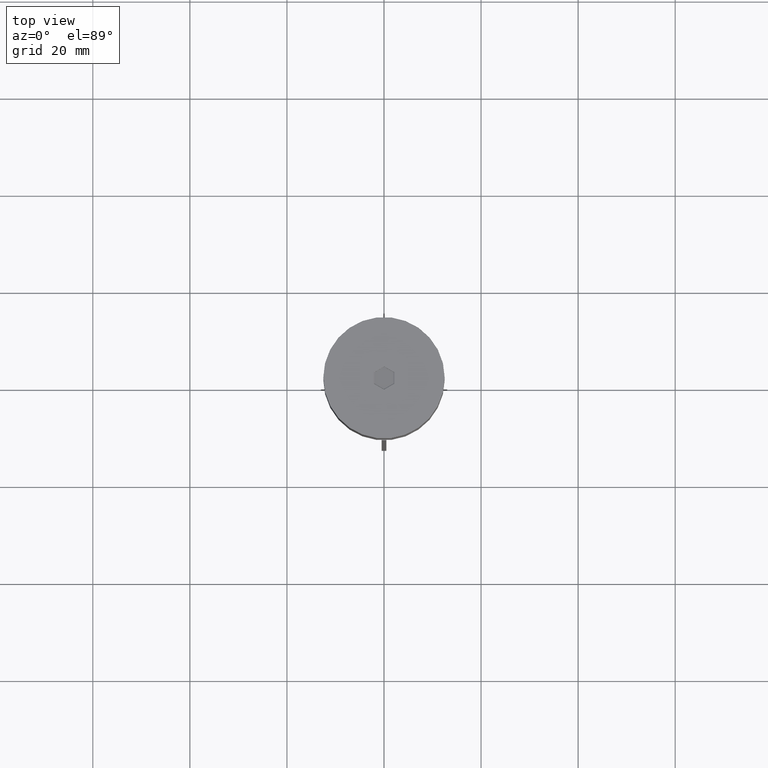
[diagram: clean part render]
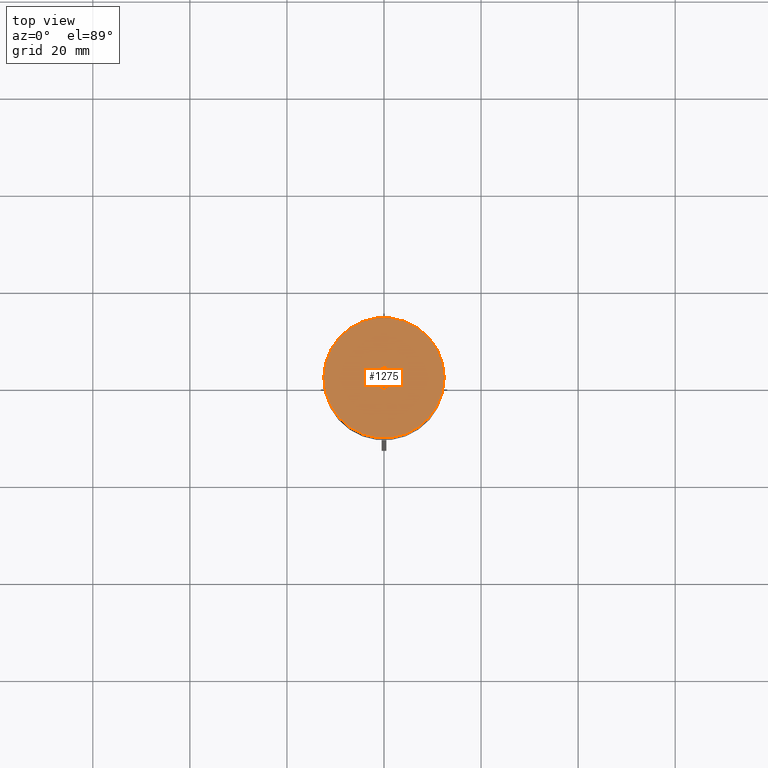
[diagram: same view with one face highlighted and labeled with its STEP entity id]
A machine part, top view. The second image highlights one B-rep face of the part: STEP entity #1275.
In plain terms, the highlighted planar face has unit normal (0, -0, 1).
Its self-contained STEP definition (entity closure, byte-faithful):
#49 = CARTESIAN_POINT ( 'NONE',  ( -12.39999999999999858, 1.524685264938454448E-15, 0.000000000000000000 ) ) ;
#51 = LINE ( 'NONE', #1314, #1912 ) ;
#90 = ORIENTED_EDGE ( 'NONE', *, *, #632, .T. ) ;
#160 = ORIENTED_EDGE ( 'NONE', *, *, #791, .T. ) ;
#176 = DIRECTION ( 'NONE',  ( 0.000000000000000000, -1.000000000000000000, 0.000000000000000000 ) ) ;
#323 = CARTESIAN_POINT ( 'NONE',  ( 2.100000000000010747, -1.154700538379251684, 0.000000000000000000 ) ) ;
#325 = ORIENTED_EDGE ( 'NONE', *, *, #2038, .T. ) ;
#349 = CARTESIAN_POINT ( 'NONE',  ( 0.000000000000000000, 0.000000000000000000, 0.000000000000000000 ) ) ;
#408 = CARTESIAN_POINT ( 'NONE',  ( -2.100000000000010747, -1.212435565298221052, 0.000000000000000000 ) ) ;
#433 = ORIENTED_EDGE ( 'NONE', *, *, #2039, .T. ) ;
#445 = VERTEX_POINT ( 'NONE', #1223 ) ;
#510 = PLANE ( 'NONE',  #942 ) ;
#526 = ORIENTED_EDGE ( 'NONE', *, *, #1555, .T. ) ;
#543 = CARTESIAN_POINT ( 'NONE',  ( -2.100000000000010747, 1.154700538379251018, 0.000000000000000000 ) ) ;
#564 = VECTOR ( 'NONE', #2006, 1000.000000000000000 ) ;
#570 = CARTESIAN_POINT ( 'NONE',  ( 2.050000000000005596, 1.241303078757704403, 0.000000000000000000 ) ) ;
#588 = VERTEX_POINT ( 'NONE', #781 ) ;
#609 = VERTEX_POINT ( 'NONE', #1788 ) ;
#625 = VERTEX_POINT ( 'NONE', #1474 ) ;
#626 = CARTESIAN_POINT ( 'NONE',  ( -2.050000000000005596, -1.241303078757705292, 0.000000000000000000 ) ) ;
#632 = EDGE_CURVE ( 'NONE', #445, #588, #51, .T. ) ;
#633 = EDGE_CURVE ( 'NONE', #625, #445, #1155, .T. ) ;
#727 = LINE ( 'NONE', #1044, #1483 ) ;
#779 = DIRECTION ( 'NONE',  ( 1.000000000000000000, 0.000000000000000000, 0.000000000000000000 ) ) ;
#781 = CARTESIAN_POINT ( 'NONE',  ( 5.924185309651265879E-16, -2.424871130596440771, 0.000000000000000000 ) ) ;
#785 = DIRECTION ( 'NONE',  ( 0.000000000000000000, -0.000000000000000000, 1.000000000000000000 ) ) ;
#791 = EDGE_CURVE ( 'NONE', #2066, #609, #1989, .T. ) ;
#809 = CIRCLE ( 'NONE', #1140, 12.39999999999999858 ) ;
#827 = EDGE_LOOP ( 'NONE', ( #1076, #325 ) ) ;
#877 = DIRECTION ( 'NONE',  ( 1.000000000000000000, 0.000000000000000000, 0.000000000000000000 ) ) ;
#909 = DIRECTION ( 'NONE',  ( -0.000000000000000000, -0.000000000000000000, 1.000000000000000000 ) ) ;
#942 = AXIS2_PLACEMENT_3D ( 'NONE', #1585, #785, #1422 ) ;
#974 = FACE_OUTER_BOUND ( 'NONE', #827, .T. ) ;
#1044 = CARTESIAN_POINT ( 'NONE',  ( -0.05000000000000531103, 2.396003617136955199, 0.000000000000000000 ) ) ;
#1049 = EDGE_LOOP ( 'NONE', ( #90, #1587, #160, #526, #433, #1548 ) ) ;
#1076 = ORIENTED_EDGE ( 'NONE', *, *, #1752, .T. ) ;
#1140 = AXIS2_PLACEMENT_3D ( 'NONE', #1201, #909, #877 ) ;
#1144 = LINE ( 'NONE', #626, #1621 ) ;
#1155 = LINE ( 'NONE', #323, #1642 ) ;
#1183 = DIRECTION ( 'NONE',  ( 0.000000000000000000, 1.000000000000000000, 0.000000000000000000 ) ) ;
#1201 = CARTESIAN_POINT ( 'NONE',  ( 0.000000000000000000, 0.000000000000000000, 0.000000000000000000 ) ) ;
#1223 = CARTESIAN_POINT ( 'NONE',  ( 2.100000000000010747, -1.212435565298220386, 0.000000000000000000 ) ) ;
#1275 = ADVANCED_FACE ( 'NONE', ( #974, #1631 ), #510, .T. ) ;
#1305 = VECTOR ( 'NONE', #1183, 1000.000000000000000 ) ;
#1314 = CARTESIAN_POINT ( 'NONE',  ( 0.05000000000000582451, -2.396003617136956532, 0.000000000000000000 ) ) ;
#1370 = CIRCLE ( 'NONE', #1803, 12.39999999999999858 ) ;
#1422 = DIRECTION ( 'NONE',  ( 1.000000000000000000, 0.000000000000000000, 0.000000000000000000 ) ) ;
#1474 = CARTESIAN_POINT ( 'NONE',  ( 2.100000000000010747, 1.212435565298220164, 0.000000000000000000 ) ) ;
#1483 = VECTOR ( 'NONE', #2057, 1000.000000000000000 ) ;
#1484 = EDGE_CURVE ( 'NONE', #588, #2066, #1144, .T. ) ;
#1518 = LINE ( 'NONE', #570, #564 ) ;
#1548 = ORIENTED_EDGE ( 'NONE', *, *, #633, .T. ) ;
#1555 = EDGE_CURVE ( 'NONE', #609, #2050, #727, .T. ) ;
#1585 = CARTESIAN_POINT ( 'NONE',  ( 0.000000000000000000, 0.000000000000000000, 0.000000000000000000 ) ) ;
#1587 = ORIENTED_EDGE ( 'NONE', *, *, #1484, .T. ) ;
#1621 = VECTOR ( 'NONE', #1933, 1000.000000000000114 ) ;
#1631 = FACE_BOUND ( 'NONE', #1049, .T. ) ;
#1642 = VECTOR ( 'NONE', #176, 1000.000000000000000 ) ;
#1752 = EDGE_CURVE ( 'NONE', #1941, #1905, #1370, .T. ) ;
#1788 = CARTESIAN_POINT ( 'NONE',  ( -2.100000000000010747, 1.212435565298219498, 0.000000000000000000 ) ) ;
#1792 = CARTESIAN_POINT ( 'NONE',  ( 12.39999999999999858, 0.000000000000000000, 0.000000000000000000 ) ) ;
#1803 = AXIS2_PLACEMENT_3D ( 'NONE', #349, #2079, #779 ) ;
#1837 = CARTESIAN_POINT ( 'NONE',  ( 6.247977034472734791E-16, 2.424871130596439883, 0.000000000000000000 ) ) ;
#1905 = VERTEX_POINT ( 'NONE', #49 ) ;
#1912 = VECTOR ( 'NONE', #1960, 999.9999999999998863 ) ;
#1933 = DIRECTION ( 'NONE',  ( -0.8660254037844388186, 0.4999999999999997780, 0.000000000000000000 ) ) ;
#1941 = VERTEX_POINT ( 'NONE', #1792 ) ;
#1960 = DIRECTION ( 'NONE',  ( -0.8660254037844385966, -0.5000000000000002220, 0.000000000000000000 ) ) ;
#1989 = LINE ( 'NONE', #543, #1305 ) ;
#2006 = DIRECTION ( 'NONE',  ( 0.8660254037844387076, -0.4999999999999998890, 0.000000000000000000 ) ) ;
#2038 = EDGE_CURVE ( 'NONE', #1905, #1941, #809, .T. ) ;
#2039 = EDGE_CURVE ( 'NONE', #2050, #625, #1518, .T. ) ;
#2050 = VERTEX_POINT ( 'NONE', #1837 ) ;
#2057 = DIRECTION ( 'NONE',  ( 0.8660254037844387076, 0.4999999999999998890, 0.000000000000000000 ) ) ;
#2066 = VERTEX_POINT ( 'NONE', #408 ) ;
#2079 = DIRECTION ( 'NONE',  ( -0.000000000000000000, -0.000000000000000000, 1.000000000000000000 ) ) ;